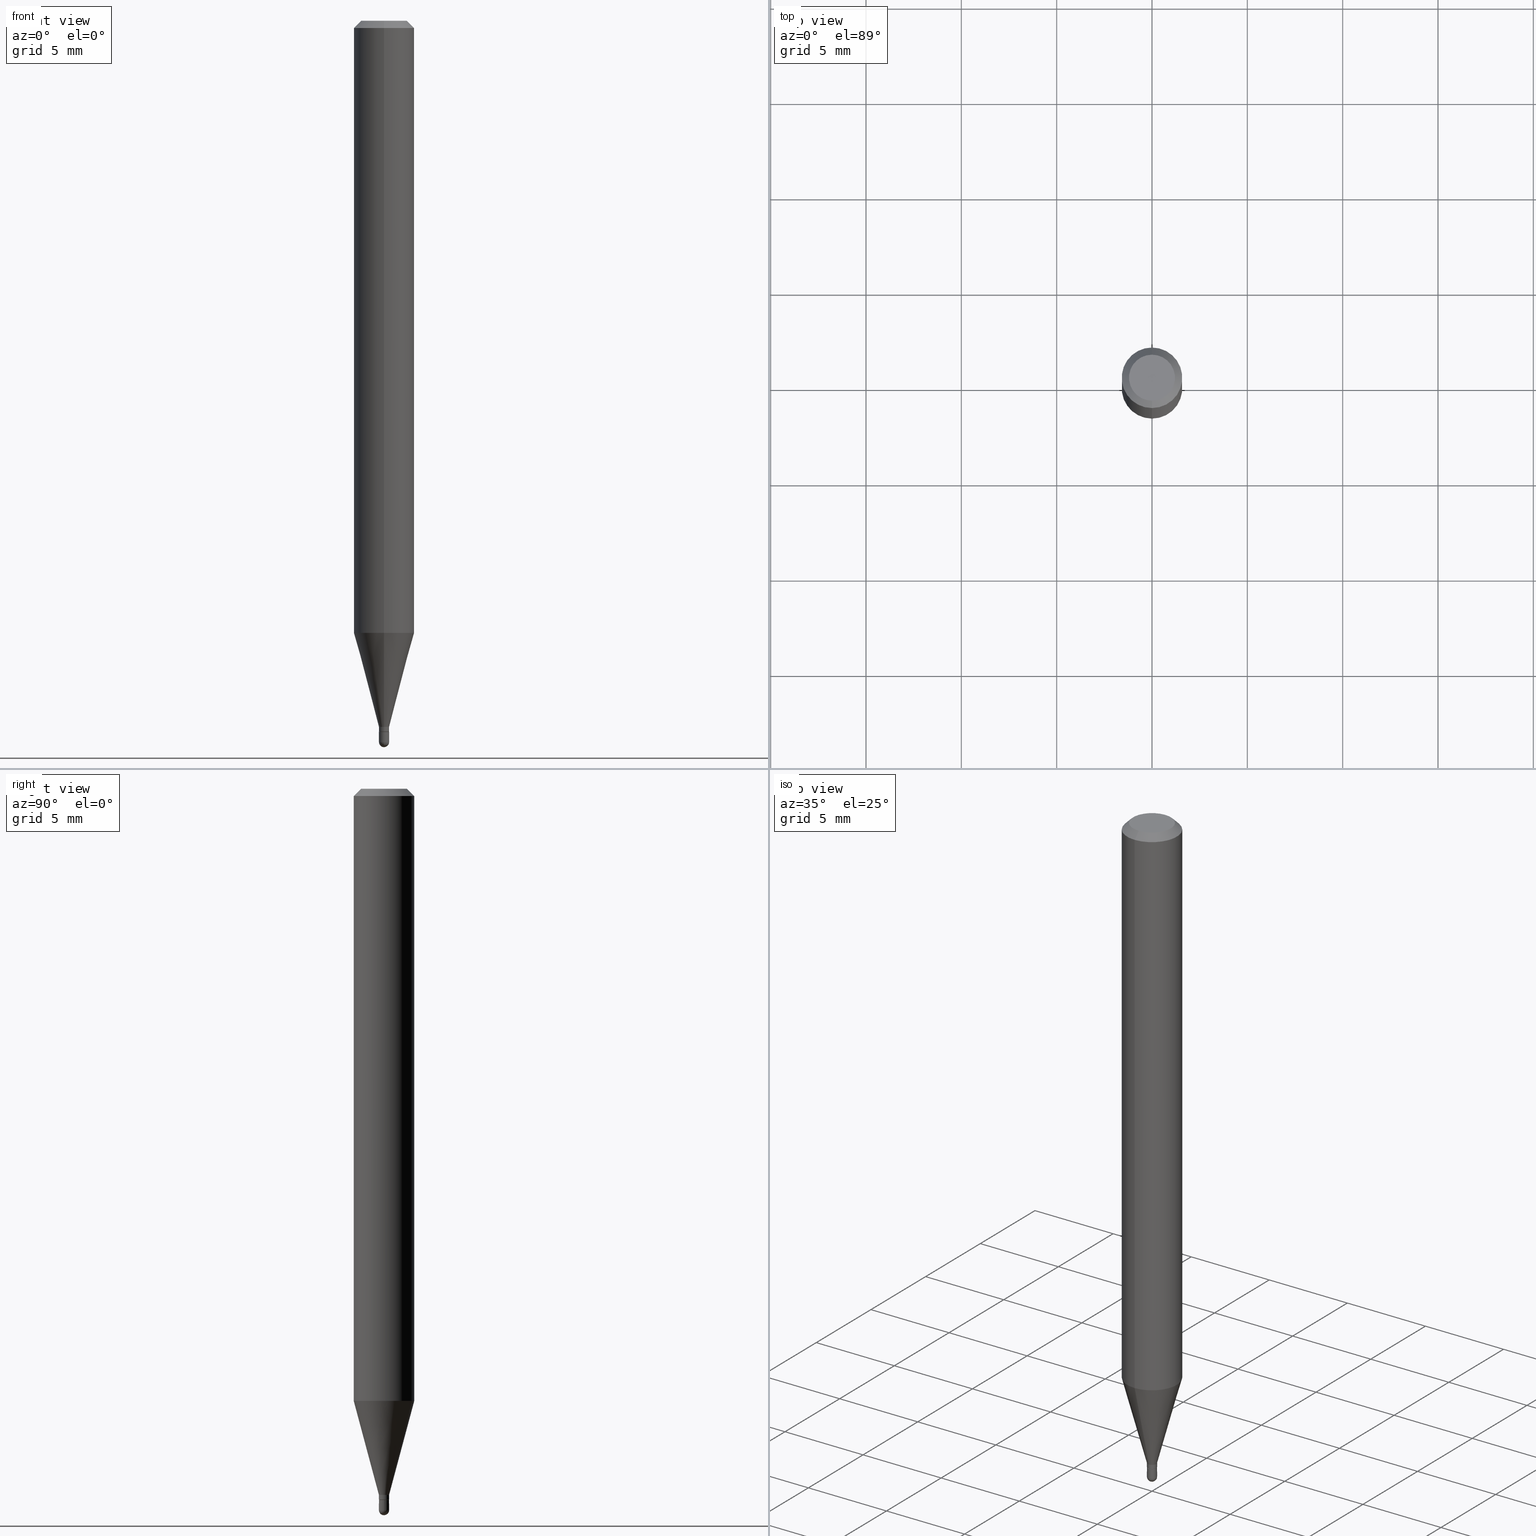
[diagram: canonical four-view strip — front | top / right | iso, engineering-drawing reading convention]
A machine part, canonical four-view strip (front | top / right | iso — engineering-drawing reading convention). The complete STEP part file that produces these views, byte-faithful:
ISO-10303-21;
HEADER;
FILE_DESCRIPTION (( 'STEP AP203' ),
    '1' );
FILE_NAME ('00685.STEP',
    '2024-03-07T18:01:37',
    ( '' ),
    ( '' ),
    'SwSTEP 2.0',
    'SolidWorks 2023',
    '' );
FILE_SCHEMA (( 'CONFIG_CONTROL_DESIGN' ));
ENDSEC;

DATA;
#1 = CARTESIAN_POINT ( 'NONE',  ( -0.01050000000000000239, 7.460698725481053648E-17, -5.164881844767652549E-31 ) ) ;
#2 = DIRECTION ( 'NONE',  ( -2.445456902332758045E-29, 3.491498385837276780E-15, 1.000000000000000000 ) ) ;
#3 = PRODUCT_DEFINITION ( 'UNKNOWN', '', #10, #252 ) ;
#4 = CIRCLE ( 'NONE', #193, 0.01049999999999992606 ) ;
#5 = AXIS2_PLACEMENT_3D ( 'NONE', #92, #249, #209 ) ;
#6 = DIRECTION ( 'NONE',  ( -2.445456902332758326E-29, 3.491498385837276386E-15, 1.000000000000000000 ) ) ;
#7 = DIRECTION ( 'NONE',  ( -2.445468806185136597E-29, 3.491481338843145583E-15, 1.000000000000000000 ) ) ;
#8 =( NAMED_UNIT ( * ) PLANE_ANGLE_UNIT ( ) SI_UNIT ( $, .RADIAN. ) );
#9 = ADVANCED_FACE ( 'NONE', ( #40 ), #241, .T. ) ;
#10 = PRODUCT_DEFINITION_FORMATION_WITH_SPECIFIED_SOURCE ( 'ANY', '', #466, .NOT_KNOWN. ) ;
#11 = CYLINDRICAL_SURFACE ( 'NONE', #12, 0.01050000000000000239 ) ;
#12 = AXIS2_PLACEMENT_3D ( 'NONE', #191, #401, #196 ) ;
#13 = AXIS2_PLACEMENT_3D ( 'NONE', #103, #70, #395 ) ;
#14 = ORIENTED_EDGE ( 'NONE', *, *, #498, .F. ) ;
#15 = CARTESIAN_POINT ( 'NONE',  ( 2.166554953746813658E-46, -3.093296437413737075E-32, -8.859509859609890847E-18 ) ) ;
#16 = EDGE_CURVE ( 'NONE', #64, #319, #258, .T. ) ;
#17 = CARTESIAN_POINT ( 'NONE',  ( 0.000000000000000000, 0.000000000000000000, 0.000000000000000000 ) ) ;
#18 = MANIFOLD_SOLID_BREP ( 'Body-Move/Copy2[1]', #269 ) ;
#19 = EDGE_LOOP ( 'NONE', ( #97, #343, #300, #341, #105 ) ) ;
#20 = APPROVAL_STATUS ( 'not_yet_approved' ) ;
#21 = DIRECTION ( 'NONE',  ( -6.982962677686266711E-15, -1.000000000000000000, 0.000000000000000000 ) ) ;
#22 = ADVANCED_FACE ( 'NONE', ( #88 ), #44, .T. ) ;
#23 = AXIS2_PLACEMENT_3D ( 'NONE', #327, #47, #277 ) ;
#24 = CARTESIAN_POINT ( 'NONE',  ( 0.01050000000000000239, -7.332110811570581229E-17, 5.119985614585733248E-31 ) ) ;
#25 = EDGE_CURVE ( 'NONE', #244, #135, #29, .T. ) ;
#26 = VERTEX_POINT ( 'NONE', #372 ) ;
#27 = CARTESIAN_POINT ( 'NONE',  ( 7.460698725484561614E-17, 0.01049999999999476699, -1.467500000000000027 ) ) ;
#28 = DIRECTION ( 'NONE',  ( -2.445456902332758326E-29, 3.491498385837276386E-15, 1.000000000000000000 ) ) ;
#29 = CIRCLE ( 'NONE', #208, 0.01050000000000000412 ) ;
#30 = VECTOR ( 'NONE', #340, 39.37007874015748143 ) ;
#31 = COORDINATED_UNIVERSAL_TIME_OFFSET ( 5, 0, .BEHIND. ) ;
#32 = ORIENTED_EDGE ( 'NONE', *, *, #90, .T. ) ;
#33 = DIRECTION ( 'NONE',  ( 6.982962677686265922E-15, 1.000000000000000000, -3.491498385837276780E-15 ) ) ;
#34 = ORIENTED_EDGE ( 'NONE', *, *, #473, .T. ) ;
#35 = FACE_OUTER_BOUND ( 'NONE', #101, .T. ) ;
#36 = DIRECTION ( 'NONE',  ( -1.000000000000000000, 7.105427357601001070E-15, -4.926315508542082329E-29 ) ) ;
#37 = AXIS2_PLACEMENT_3D ( 'NONE', #65, #345, #499 ) ;
#38 = DIRECTION ( 'NONE',  ( -6.982962677686266711E-15, -1.000000000000000000, 0.000000000000000000 ) ) ;
#39 = CARTESIAN_POINT ( 'NONE',  ( -7.332110811566961097E-17, -0.01050000000000501574, -1.458000000000000185 ) ) ;
#40 = FACE_OUTER_BOUND ( 'NONE', #302, .T. ) ;
#41 = FACE_OUTER_BOUND ( 'NONE', #506, .T. ) ;
#42 = ORIENTED_EDGE ( 'NONE', *, *, #171, .T. ) ;
#43 = APPROVAL_PERSON_ORGANIZATION ( #146, #385, #301 ) ;
#44 = CONICAL_SURFACE ( 'NONE', #23, 0.01049999999999992432, 0.2617993877991504625 ) ;
#45 = DIRECTION ( 'NONE',  ( -2.445456902332758045E-29, 3.491498385837276780E-15, 1.000000000000000000 ) ) ;
#46 = ADVANCED_FACE ( 'NONE', ( #48 ), #231, .T. ) ;
#47 = DIRECTION ( 'NONE',  ( -2.445456902332758326E-29, 3.491498385837276386E-15, 1.000000000000000000 ) ) ;
#48 = FACE_OUTER_BOUND ( 'NONE', #19, .T. ) ;
#49 = COORDINATED_UNIVERSAL_TIME_OFFSET ( 5, 0, .BEHIND. ) ;
#50 = DIRECTION ( 'NONE',  ( -2.445468806185136597E-29, 3.491481338843145583E-15, 1.000000000000000000 ) ) ;
#51 = EDGE_CURVE ( 'NONE', #319, #64, #82, .T. ) ;
#52 = CARTESIAN_POINT ( 'NONE',  ( 0.000000000000000000, 0.000000000000000000, 0.000000000000000000 ) ) ;
#53 = AXIS2_PLACEMENT_3D ( 'NONE', #56, #294, #21 ) ;
#54 = ADVANCED_FACE ( 'NONE', ( #444 ), #11, .T. ) ;
#55 = VERTEX_POINT ( 'NONE', #476 ) ;
#56 = CARTESIAN_POINT ( 'NONE',  ( 3.588708004173323073E-29, -5.123773881216203545E-15, -1.467500000000000027 ) ) ;
#57 = EDGE_CURVE ( 'NONE', #135, #319, #362, .T. ) ;
#58 = PERSON_AND_ORGANIZATION_ROLE ( 'creator' ) ;
#59 = DIRECTION ( 'NONE',  ( -6.982962677686266711E-15, -1.000000000000000000, 0.000000000000000000 ) ) ;
#60 = CYLINDRICAL_SURFACE ( 'NONE', #492, 0.06250000000000000000 ) ;
#61 = EDGE_LOOP ( 'NONE', ( #130, #387 ) ) ;
#62 = DIRECTION ( 'NONE',  ( 1.000000000000000000, -6.982962677686284065E-15, 0.000000000000000000 ) ) ;
#63 = EDGE_CURVE ( 'NONE', #497, #422, #117, .T. ) ;
#64 = VERTEX_POINT ( 'NONE', #115 ) ;
#65 = CARTESIAN_POINT ( 'NONE',  ( 3.668185353499139818E-31, -5.237247578755917907E-17, -0.01500000000000000812 ) ) ;
#66 = ORIENTED_EDGE ( 'NONE', *, *, #439, .T. ) ;
#67 = CARTESIAN_POINT ( 'NONE',  ( 4.440892098500932831E-16, 0.06249999999999556605, -1.263933358006419372 ) ) ;
#68 = AXIS2_PLACEMENT_3D ( 'NONE', #420, #386, #141 ) ;
#69 = ORIENTED_EDGE ( 'NONE', *, *, #176, .T. ) ;
#70 = DIRECTION ( 'NONE',  ( -2.445456902332758326E-29, 3.491498385837276386E-15, 1.000000000000000000 ) ) ;
#71 = ORIENTED_EDGE ( 'NONE', *, *, #152, .F. ) ;
#72 = CARTESIAN_POINT ( 'NONE',  ( 7.460698725480996948E-17, 0.01049999999999992432, -3.666073305129114000E-17 ) ) ;
#73 = EDGE_LOOP ( 'NONE', ( #377, #404, #42, #419 ) ) ;
#74 = CARTESIAN_POINT ( 'NONE',  ( 7.105427357604591324E-17, 0.009999999999994875835, -1.467999999999999972 ) ) ;
#75 = ADVANCED_FACE ( 'NONE', ( #234 ), #76, .T. ) ;
#76 = CONICAL_SURFACE ( 'NONE', #329, 0.01000000000000000194, 0.7853981633974739252 ) ;
#77 = PERSON_AND_ORGANIZATION ( #242, #149 ) ;
#78 = CALENDAR_DATE ( 2024, 7, 3 ) ;
#79 = ORIENTED_EDGE ( 'NONE', *, *, #25, .F. ) ;
#80 = DIRECTION ( 'NONE',  ( -1.807323732225331323E-15, -0.2588190451025183525, 0.9659258262890689783 ) ) ;
#81 = CARTESIAN_POINT ( 'NONE',  ( 3.642525786812761109E-29, -5.200561454206865813E-15, -1.489500000000000046 ) ) ;
#82 = CIRCLE ( 'NONE', #441, 0.01050000000000000239 ) ;
#83 =( CONVERSION_BASED_UNIT ( 'INCH', #480 ) LENGTH_UNIT ( ) NAMED_UNIT ( #324 ) );
#84 = AXIS2_PLACEMENT_3D ( 'NONE', #254, #245, #131 ) ;
#85 = AXIS2_PLACEMENT_3D ( 'NONE', #188, #360, #158 ) ;
#86 = EDGE_LOOP ( 'NONE', ( #257, #137 ) ) ;
#87 = CC_DESIGN_PERSON_AND_ORGANIZATION_ASSIGNMENT ( #163, #58, ( #3 ) ) ;
#88 = FACE_OUTER_BOUND ( 'NONE', #110, .T. ) ;
#89 = DIRECTION ( 'NONE',  ( -2.445456902332758045E-29, 3.491498385837276780E-15, 1.000000000000000000 ) ) ;
#90 = EDGE_CURVE ( 'NONE', #388, #222, #391, .T. ) ;
#91 = CC_DESIGN_SECURITY_CLASSIFICATION ( #184, ( #10 ) ) ;
#92 = CARTESIAN_POINT ( 'NONE',  ( 3.668185353499139818E-31, -5.237247578755917907E-17, -0.01500000000000000812 ) ) ;
#93 = ORIENTED_EDGE ( 'NONE', *, *, #232, .T. ) ;
#94 = LINE ( 'NONE', #24, #30 ) ;
#95 = ORIENTED_EDGE ( 'NONE', *, *, #90, .F. ) ;
#96 = CARTESIAN_POINT ( 'NONE',  ( 3.840629472727447874E-16, 0.04749999999999999362, -1.747056831868805136E-16 ) ) ;
#97 = ORIENTED_EDGE ( 'NONE', *, *, #25, .T. ) ;
#98 = DIRECTION ( 'NONE',  ( -6.982962677686265922E-15, -1.000000000000000000, 3.483106191921935554E-15 ) ) ;
#99 = ORIENTED_EDGE ( 'NONE', *, *, #417, .F. ) ;
#100 = DIRECTION ( 'NONE',  ( -2.445456902332758045E-29, 3.491498385837276780E-15, 1.000000000000000000 ) ) ;
#101 = EDGE_LOOP ( 'NONE', ( #456, #118, #161, #79 ) ) ;
#102 = SHAPE_DEFINITION_REPRESENTATION ( #436, #368 ) ;
#103 = CARTESIAN_POINT ( 'NONE',  ( 3.589930732624489770E-29, -5.125519630409121979E-15, -1.467999999999999972 ) ) ;
#104 = ADVANCED_FACE ( 'NONE', ( #170 ), #455, .F. ) ;
#105 = ORIENTED_EDGE ( 'NONE', *, *, #498, .T. ) ;
#106 = CARTESIAN_POINT ( 'NONE',  ( 3.641627862209123003E-29, -5.201847333345970488E-15, -1.489500000000000046 ) ) ;
#107 = APPROVAL ( #398, 'UNSPECIFIED' ) ;
#108 = CIRCLE ( 'NONE', #5, 0.06250000000000000000 ) ;
#109 = CONICAL_SURFACE ( 'NONE', #240, 0.01000000000000000194, 0.7853981633974739252 ) ;
#110 = EDGE_LOOP ( 'NONE', ( #311, #172, #346, #192 ) ) ;
#111 = LINE ( 'NONE', #74, #178 ) ;
#112 = ORIENTED_EDGE ( 'NONE', *, *, #113, .F. ) ;
#113 = EDGE_CURVE ( 'NONE', #222, #388, #4, .T. ) ;
#114 = LINE ( 'NONE', #39, #194 ) ;
#115 = CARTESIAN_POINT ( 'NONE',  ( 0.01050000000000000239, -5.198815713537444309E-15, -1.467999999999999972 ) ) ;
#116 = LINE ( 'NONE', #472, #406 ) ;
#117 = LINE ( 'NONE', #367, #373 ) ;
#118 = ORIENTED_EDGE ( 'NONE', *, *, #389, .T. ) ;
#119 = CARTESIAN_POINT ( 'NONE',  ( -3.773273898774340269E-16, -0.04749999999999999362, 1.569866634676607381E-16 ) ) ;
#120 = VECTOR ( 'NONE', #461, 39.37007874015748854 ) ;
#121 = CARTESIAN_POINT ( 'NONE',  ( 3.589948207479780735E-29, -5.125494605421738004E-15, -1.467999999999999972 ) ) ;
#122 = COORDINATED_UNIVERSAL_TIME_OFFSET ( 5, 0, .BEHIND. ) ;
#123 = FACE_OUTER_BOUND ( 'NONE', #272, .T. ) ;
#124 = ORIENTED_EDGE ( 'NONE', *, *, #16, .T. ) ;
#125 = DIRECTION ( 'NONE',  ( -2.445456902332758326E-29, 3.491498385837276386E-15, 1.000000000000000000 ) ) ;
#126 = VERTEX_POINT ( 'NONE', #166 ) ;
#127 = DIRECTION ( 'NONE',  ( -2.445456902332758326E-29, 3.491498385837276386E-15, 1.000000000000000000 ) ) ;
#128 = AXIS2_PLACEMENT_3D ( 'NONE', #155, #197, #233 ) ;
#129 = ADVANCED_FACE ( 'NONE', ( #299 ), #296, .T. ) ;
#130 = ORIENTED_EDGE ( 'NONE', *, *, #292, .T. ) ;
#131 = DIRECTION ( 'NONE',  ( 6.982962677686265133E-15, 1.000000000000000000, 0.000000000000000000 ) ) ;
#132 = ORIENTED_EDGE ( 'NONE', *, *, #113, .T. ) ;
#133 = EDGE_CURVE ( 'NONE', #422, #126, #248, .T. ) ;
#134 = CARTESIAN_POINT ( 'NONE',  ( 3.642525786812761109E-29, -5.200561454206865813E-15, -1.489500000000000046 ) ) ;
#135 = VERTEX_POINT ( 'NONE', #451 ) ;
#136 = EDGE_CURVE ( 'NONE', #383, #169, #278, .T. ) ;
#137 = ORIENTED_EDGE ( 'NONE', *, *, #297, .F. ) ;
#138 = EDGE_CURVE ( 'NONE', #351, #64, #94, .T. ) ;
#139 = FACE_OUTER_BOUND ( 'NONE', #283, .T. ) ;
#140 = CIRCLE ( 'NONE', #320, 0.04749999999999999362 ) ;
#141 = DIRECTION ( 'NONE',  ( 6.982962677686265922E-15, 1.000000000000000000, 0.000000000000000000 ) ) ;
#142 = EDGE_CURVE ( 'NONE', #169, #383, #348, .T. ) ;
#143 = ORIENTED_EDGE ( 'NONE', *, *, #331, .F. ) ;
#144 = EDGE_LOOP ( 'NONE', ( #124, #156 ) ) ;
#145 = DIRECTION ( 'NONE',  ( -6.982962677686266711E-15, -1.000000000000000000, 0.000000000000000000 ) ) ;
#146 = PERSON_AND_ORGANIZATION ( #242, #149 ) ;
#147 = DIRECTION ( 'NONE',  ( -6.982962677686266711E-15, -1.000000000000000000, 0.000000000000000000 ) ) ;
#148 = CIRCLE ( 'NONE', #13, 0.01000000000000000194 ) ;
#149 = ORGANIZATION ( 'UNSPECIFIED', 'UNSPECIFIED', '' ) ;
#150 = ORIENTED_EDGE ( 'NONE', *, *, #477, .F. ) ;
#151 = PLANE ( 'NONE',  #410 ) ;
#152 = EDGE_CURVE ( 'NONE', #497, #174, #140, .T. ) ;
#153 = CARTESIAN_POINT ( 'NONE',  ( 4.440892098500625669E-16, 0.06250000000000000000, -2.182186491148297741E-16 ) ) ;
#154 = CONICAL_SURFACE ( 'NONE', #337, 0.06250000000000000000, 0.7853981633974483900 ) ;
#155 = CARTESIAN_POINT ( 'NONE',  ( 3.642525786812761109E-29, -5.200561454206865813E-15, -1.489500000000000046 ) ) ;
#156 = ORIENTED_EDGE ( 'NONE', *, *, #51, .T. ) ;
#157 = CARTESIAN_POINT ( 'NONE',  ( 3.641627862209123003E-29, -5.201847333345970488E-15, -1.489500000000000046 ) ) ;
#158 = DIRECTION ( 'NONE',  ( 1.000000000000000000, -6.982962677686284065E-15, 0.000000000000000000 ) ) ;
#159 = VECTOR ( 'NONE', #89, 39.37007874015748143 ) ;
#160 = DIRECTION ( 'NONE',  ( 6.982962677686265922E-15, 1.000000000000000000, 0.000000000000000000 ) ) ;
#161 = ORIENTED_EDGE ( 'NONE', *, *, #200, .F. ) ;
#162 = CARTESIAN_POINT ( 'NONE',  ( 3.090894554425418435E-29, -4.413021279285300535E-15, -1.263933358006419150 ) ) ;
#163 = PERSON_AND_ORGANIZATION ( #242, #149 ) ;
#164 = DIRECTION ( 'NONE',  ( -2.445468806185136597E-29, 3.491481338843145583E-15, 1.000000000000000000 ) ) ;
#165 = APPROVAL_ROLE ( '' ) ;
#166 = CARTESIAN_POINT ( 'NONE',  ( 4.440892098500936776E-16, 0.06249999999999993755, -0.01500000000000022669 ) ) ;
#167 = AXIS2_PLACEMENT_3D ( 'NONE', #214, #508, #308 ) ;
#168 =( GEOMETRIC_REPRESENTATION_CONTEXT ( 3 ) GLOBAL_UNCERTAINTY_ASSIGNED_CONTEXT ( ( #243 ) ) GLOBAL_UNIT_ASSIGNED_CONTEXT ( ( #83, #8, #190 ) ) REPRESENTATION_CONTEXT ( 'NONE', 'WORKASPACE' ) );
#169 = VERTEX_POINT ( 'NONE', #342 ) ;
#170 = FACE_OUTER_BOUND ( 'NONE', #144, .T. ) ;
#171 = EDGE_CURVE ( 'NONE', #169, #422, #203, .T. ) ;
#172 = ORIENTED_EDGE ( 'NONE', *, *, #261, .T. ) ;
#173 = ADVANCED_FACE ( 'NONE', ( #123 ), #60, .T. ) ;
#174 = VERTEX_POINT ( 'NONE', #96 ) ;
#175 = CARTESIAN_POINT ( 'NONE',  ( -0.01050000000000000239, -5.088421042559490534E-15, -1.467999999999999972 ) ) ;
#176 = EDGE_CURVE ( 'NONE', #264, #244, #229, .T. ) ;
#177 = CARTESIAN_POINT ( 'NONE',  ( 3.565476163601162560E-29, -5.090604646550748565E-15, -1.458000000000000185 ) ) ;
#178 = VECTOR ( 'NONE', #180, 39.37007874015748143 ) ;
#179 = ORIENTED_EDGE ( 'NONE', *, *, #470, .T. ) ;
#180 = DIRECTION ( 'NONE',  ( 5.024295867788190974E-15, 0.7071067811865681119, 0.7071067811865270336 ) ) ;
#181 = MANIFOLD_SOLID_BREP ( 'Body-Move/Copy2[2]', #485 ) ;
#182 = ORIENTED_EDGE ( 'NONE', *, *, #292, .F. ) ;
#183 = FACE_OUTER_BOUND ( 'NONE', #274, .T. ) ;
#184 = SECURITY_CLASSIFICATION ( '', '', #446 ) ;
#185 = CARTESIAN_POINT ( 'NONE',  ( 3.316907271900976096E-16, 0.04749999999999999362, -1.702759282570755759E-16 ) ) ;
#186 = EDGE_CURVE ( 'NONE', #126, #422, #108, .T. ) ;
#187 = AXIS2_PLACEMENT_3D ( 'NONE', #106, #36, #223 ) ;
#188 = CARTESIAN_POINT ( 'NONE',  ( 3.642525786812761109E-29, -5.200561454206865813E-15, -1.489500000000000046 ) ) ;
#189 = PERSON_AND_ORGANIZATION ( #242, #149 ) ;
#190 =( NAMED_UNIT ( * ) SI_UNIT ( $, .STERADIAN. ) SOLID_ANGLE_UNIT ( ) );
#191 = CARTESIAN_POINT ( 'NONE',  ( 0.000000000000000000, 0.000000000000000000, 0.000000000000000000 ) ) ;
#192 = ORIENTED_EDGE ( 'NONE', *, *, #136, .F. ) ;
#193 = AXIS2_PLACEMENT_3D ( 'NONE', #378, #127, #59 ) ;
#194 = VECTOR ( 'NONE', #80, 39.37007874015748854 ) ;
#195 = LINE ( 'NONE', #153, #339 ) ;
#196 = DIRECTION ( 'NONE',  ( 1.000000000000000000, -6.982962677686265922E-15, 4.876176775795935232E-29 ) ) ;
#197 = DIRECTION ( 'NONE',  ( -2.445468806185136597E-29, 3.491481338843145583E-15, 1.000000000000000000 ) ) ;
#198 = DIRECTION ( 'NONE',  ( -2.445468806185136597E-29, 3.491481338843145583E-15, 1.000000000000000000 ) ) ;
#199 = ADVANCED_FACE ( 'NONE', ( #376 ), #416, .T. ) ;
#200 = EDGE_CURVE ( 'NONE', #135, #26, #270, .T. ) ;
#201 = AXIS2_PLACEMENT_3D ( 'NONE', #332, #445, #98 ) ;
#202 = DIRECTION ( 'NONE',  ( -2.445456902332758326E-29, 3.491498385837276386E-15, 1.000000000000000000 ) ) ;
#203 = LINE ( 'NONE', #259, #159 ) ;
#204 = ORIENTED_EDGE ( 'NONE', *, *, #51, .F. ) ;
#205 = CARTESIAN_POINT ( 'NONE',  ( 0.000000000000000000, 0.000000000000000000, 0.000000000000000000 ) ) ;
#206 = EDGE_LOOP ( 'NONE', ( #226, #93, #438, #424 ) ) ;
#207 = CALENDAR_DATE ( 2024, 7, 3 ) ;
#208 = AXIS2_PLACEMENT_3D ( 'NONE', #81, #484, #482 ) ;
#209 = DIRECTION ( 'NONE',  ( -6.982962677686265922E-15, -1.000000000000000000, 3.483106191921935554E-15 ) ) ;
#210 = VECTOR ( 'NONE', #100, 39.37007874015748143 ) ;
#211 = ORIENTED_EDGE ( 'NONE', *, *, #63, .F. ) ;
#212 = CARTESIAN_POINT ( 'NONE',  ( 3.668185353499139818E-31, -5.237247578755917907E-17, -0.01500000000000000812 ) ) ;
#213 = DATE_TIME_ROLE ( 'classification_date' ) ;
#214 = CARTESIAN_POINT ( 'NONE',  ( 3.565476163601162560E-29, -5.090604646550748565E-15, -1.458000000000000185 ) ) ;
#215 = ORIENTED_EDGE ( 'NONE', *, *, #142, .T. ) ;
#216 = CARTESIAN_POINT ( 'NONE',  ( -6.982962677682677640E-17, -0.01000000000000512805, -1.467999999999999972 ) ) ;
#217 = CIRCLE ( 'NONE', #167, 0.01049999999999992432 ) ;
#218 = CONICAL_SURFACE ( 'NONE', #37, 0.06250000000000000000, 0.7853981633974483900 ) ;
#219 = ORIENTED_EDGE ( 'NONE', *, *, #359, .F. ) ;
#220 = ADVANCED_FACE ( 'NONE', ( #382 ), #154, .T. ) ;
#221 = PLANE ( 'NONE',  #486 ) ;
#222 = VERTEX_POINT ( 'NONE', #27 ) ;
#223 = DIRECTION ( 'NONE',  ( -7.105427357601001070E-15, -1.000000000000000000, 0.000000000000000000 ) ) ;
#224 = ADVANCED_FACE ( 'NONE', ( #330 ), #457, .T. ) ;
#225 = DATE_AND_TIME ( #350, #255 ) ;
#226 = ORIENTED_EDGE ( 'NONE', *, *, #325, .T. ) ;
#227 = CARTESIAN_POINT ( 'NONE',  ( 0.000000000000000000, 0.000000000000000000, 0.000000000000000000 ) ) ;
#228 = AXIS2_PLACEMENT_3D ( 'NONE', #399, #198, #370 ) ;
#229 = CIRCLE ( 'NONE', #84, 0.01050000000000003535 ) ;
#230 = APPLICATION_PROTOCOL_DEFINITION ( 'international standard', 'config_control_design', 1994, #481 ) ;
#231 = CYLINDRICAL_SURFACE ( 'NONE', #228, 0.01050000000000000239 ) ;
#232 = EDGE_CURVE ( 'NONE', #504, #383, #467, .T. ) ;
#233 = DIRECTION ( 'NONE',  ( 1.000000000000000000, -6.982962677686284065E-15, 0.000000000000000000 ) ) ;
#234 = FACE_OUTER_BOUND ( 'NONE', #460, .T. ) ;
#235 = CC_DESIGN_PERSON_AND_ORGANIZATION_ASSIGNMENT ( #314, #316, ( #10 ) ) ;
#236 = CARTESIAN_POINT ( 'NONE',  ( 2.593480985524697824E-16, 0.01049999999999483465, -1.458000000000000185 ) ) ;
#237 = DIRECTION ( 'NONE',  ( -2.445456902332758326E-29, 3.491498385837276386E-15, 1.000000000000000000 ) ) ;
#238 = AXIS2_PLACEMENT_3D ( 'NONE', #323, #7, #408 ) ;
#239 = CIRCLE ( 'NONE', #405, 0.04749999999999999362 ) ;
#240 = AXIS2_PLACEMENT_3D ( 'NONE', #407, #6, #38 ) ;
#241 = SPHERICAL_SURFACE ( 'NONE', #434, 0.01050000000000003535 ) ;
#242 = PERSON ( 'UNSPECIFIED', 'UNSPECIFIED', 'UNSPECIFIED', ('UNSPECIFIED'), ('UNSPECIFIED'), ('UNSPECIFIED') ) ;
#243 = UNCERTAINTY_MEASURE_WITH_UNIT (LENGTH_MEASURE( 1.000000000000000082E-05 ), #83, 'distance_accuracy_value', 'NONE');
#244 = VERTEX_POINT ( 'NONE', #392 ) ;
#245 = DIRECTION ( 'NONE',  ( 1.000000000000000000, -6.982962677686265922E-15, 4.883557194083112340E-29 ) ) ;
#246 = ORIENTED_EDGE ( 'NONE', *, *, #133, .T. ) ;
#247 = DATE_AND_TIME ( #290, #402 ) ;
#248 = CIRCLE ( 'NONE', #201, 0.06250000000000000000 ) ;
#249 = DIRECTION ( 'NONE',  ( -2.445456902332758326E-29, 3.491498385837276386E-15, 1.000000000000000000 ) ) ;
#250 = VERTEX_POINT ( 'NONE', #357 ) ;
#251 = DIRECTION ( 'NONE',  ( 2.445456902332758326E-29, -3.491498385837276386E-15, -1.000000000000000000 ) ) ;
#252 = DESIGN_CONTEXT ( 'detailed design', #481, 'design' ) ;
#253 = ORIENTED_EDGE ( 'NONE', *, *, #63, .T. ) ;
#254 = CARTESIAN_POINT ( 'NONE',  ( 3.641627862209123003E-29, -5.201847333345970488E-15, -1.489500000000000046 ) ) ;
#255 = LOCAL_TIME ( 13, 1, 37.00000000000000000, #468 ) ;
#256 = ORIENTED_EDGE ( 'NONE', *, *, #325, .F. ) ;
#257 = ORIENTED_EDGE ( 'NONE', *, *, #512, .F. ) ;
#258 = CIRCLE ( 'NONE', #238, 0.01050000000000000239 ) ;
#259 = CARTESIAN_POINT ( 'NONE',  ( -4.364351673553916201E-16, -0.06250000000000000000, 2.182186491148297741E-16 ) ) ;
#260 = AXIS2_PLACEMENT_3D ( 'NONE', #17, #489, #289 ) ;
#261 = EDGE_CURVE ( 'NONE', #504, #250, #217, .T. ) ;
#262 = ORIENTED_EDGE ( 'NONE', *, *, #331, .T. ) ;
#263 = FACE_OUTER_BOUND ( 'NONE', #86, .T. ) ;
#264 = VERTEX_POINT ( 'NONE', #459 ) ;
#265 = CARTESIAN_POINT ( 'NONE',  ( 7.283063041544588178E-17, 0.009999999999994875835, -1.467999999999999972 ) ) ;
#266 = ADVANCED_FACE ( 'NONE', ( #139 ), #218, .T. ) ;
#267 = DATE_AND_TIME ( #430, #334 ) ;
#268 = LINE ( 'NONE', #216, #364 ) ;
#269 = CLOSED_SHELL ( 'NONE', ( #46, #336, #104, #9, #54 ) ) ;
#270 = CIRCLE ( 'NONE', #396, 0.01050000000000000412 ) ;
#271 = AXIS2_PLACEMENT_3D ( 'NONE', #403, #282, #317 ) ;
#272 = EDGE_LOOP ( 'NONE', ( #215, #179, #349, #449 ) ) ;
#273 = CARTESIAN_POINT ( 'NONE',  ( 3.565476163601162560E-29, -5.090604646550748565E-15, -1.458000000000000185 ) ) ;
#274 = EDGE_LOOP ( 'NONE', ( #143, #132, #66, #415 ) ) ;
#275 = CC_DESIGN_PERSON_AND_ORGANIZATION_ASSIGNMENT ( #77, #363, ( #466 ) ) ;
#276 = SPHERICAL_SURFACE ( 'NONE', #68, 0.01050000000000003535 ) ;
#277 = DIRECTION ( 'NONE',  ( -6.982962677686266711E-15, -1.000000000000000000, 0.000000000000000000 ) ) ;
#278 = CIRCLE ( 'NONE', #358, 0.06250000000000000000 ) ;
#279 = COORDINATED_UNIVERSAL_TIME_OFFSET ( 5, 0, .BEHIND. ) ;
#280 = CARTESIAN_POINT ( 'NONE',  ( 3.589930732624489770E-29, -5.125519630409121979E-15, -1.467999999999999972 ) ) ;
#281 = DIRECTION ( 'NONE',  ( -4.851104656540964275E-15, -0.7071067811865500152, -0.7071067811865450192 ) ) ;
#282 = DIRECTION ( 'NONE',  ( -2.445456902332758326E-29, 3.491498385837276386E-15, 1.000000000000000000 ) ) ;
#283 = EDGE_LOOP ( 'NONE', ( #71, #253, #246, #150 ) ) ;
#284 = VECTOR ( 'NONE', #479, 39.37007874015748143 ) ;
#285 = CIRCLE ( 'NONE', #187, 0.01050000000000003535 ) ;
#286 = CC_DESIGN_APPROVAL ( #107, ( #3 ) ) ;
#287 = ADVANCED_FACE ( 'NONE', ( #263 ), #151, .F. ) ;
#288 = DIRECTION ( 'NONE',  ( 1.000000000000000000, -6.982962677686284854E-15, 0.000000000000000000 ) ) ;
#289 = DIRECTION ( 'NONE',  ( -6.982962677686265922E-15, -1.000000000000000000, 3.491498385837276386E-15 ) ) ;
#290 = CALENDAR_DATE ( 2024, 7, 3 ) ;
#291 = DIRECTION ( 'NONE',  ( -1.000000000000000000, 6.982962677686265922E-15, -4.876176775795935793E-29 ) ) ;
#292 = EDGE_CURVE ( 'NONE', #174, #497, #239, .T. ) ;
#293 = CIRCLE ( 'NONE', #85, 0.01050000000000000412 ) ;
#294 = DIRECTION ( 'NONE',  ( -2.445456902332758326E-29, 3.491498385837276386E-15, 1.000000000000000000 ) ) ;
#295 = PERSON_AND_ORGANIZATION_ROLE ( 'design_supplier' ) ;
#296 = CYLINDRICAL_SURFACE ( 'NONE', #448, 0.01049999999999992432 ) ;
#297 = EDGE_CURVE ( 'NONE', #344, #55, #148, .T. ) ;
#298 = DATE_TIME_ROLE ( 'creation_date' ) ;
#299 = FACE_OUTER_BOUND ( 'NONE', #418, .T. ) ;
#300 = ORIENTED_EDGE ( 'NONE', *, *, #16, .F. ) ;
#301 = APPROVAL_ROLE ( '' ) ;
#302 = EDGE_LOOP ( 'NONE', ( #502, #69, #14, #469 ) ) ;
#303 = DIRECTION ( 'NONE',  ( -2.445456902332757765E-29, 3.491498385837276780E-15, 1.000000000000000000 ) ) ;
#304 = AXIS2_PLACEMENT_3D ( 'NONE', #412, #494, #291 ) ;
#305 = EDGE_LOOP ( 'NONE', ( #211, #182, #428, #394 ) ) ;
#306 = PERSON_AND_ORGANIZATION_ROLE ( 'classification_officer' ) ;
#307 = ORIENTED_EDGE ( 'NONE', *, *, #200, .T. ) ;
#308 = DIRECTION ( 'NONE',  ( -6.982962677686266711E-15, -1.000000000000000000, 0.000000000000000000 ) ) ;
#309 = ORIENTED_EDGE ( 'NONE', *, *, #138, .T. ) ;
#310 = DIRECTION ( 'NONE',  ( -2.445456902332758326E-29, 3.491498385837276386E-15, 1.000000000000000000 ) ) ;
#311 = ORIENTED_EDGE ( 'NONE', *, *, #232, .F. ) ;
#312 = CARTESIAN_POINT ( 'NONE',  ( 7.460698725484561614E-17, 0.01049999999999483465, -1.458000000000000185 ) ) ;
#313 = ORIENTED_EDGE ( 'NONE', *, *, #359, .T. ) ;
#314 = PERSON_AND_ORGANIZATION ( #242, #149 ) ;
#315 = DIRECTION ( 'NONE',  ( -6.982962677686265922E-15, -1.000000000000000000, 3.491498385837276780E-15 ) ) ;
#316 = PERSON_AND_ORGANIZATION_ROLE ( 'creator' ) ;
#317 = DIRECTION ( 'NONE',  ( -6.982962677686266711E-15, -1.000000000000000000, 0.000000000000000000 ) ) ;
#318 = MECHANICAL_CONTEXT ( 'NONE', #333, 'mechanical' ) ;
#319 = VERTEX_POINT ( 'NONE', #175 ) ;
#320 = AXIS2_PLACEMENT_3D ( 'NONE', #15, #491, #413 ) ;
#321 = CARTESIAN_POINT ( 'NONE',  ( 0.000000000000000000, 0.000000000000000000, 0.000000000000000000 ) ) ;
#322 = DIRECTION ( 'NONE',  ( -1.000000000000000000, 6.982962677686265922E-15, -4.883557194083113462E-29 ) ) ;
#323 = CARTESIAN_POINT ( 'NONE',  ( 3.589948207479780735E-29, -5.125494605421738004E-15, -1.467999999999999972 ) ) ;
#324 = DIMENSIONAL_EXPONENTS ( 1.000000000000000000, 0.000000000000000000, 0.000000000000000000, 0.000000000000000000, 0.000000000000000000, 0.000000000000000000, 0.000000000000000000 ) ;
#325 = EDGE_CURVE ( 'NONE', #250, #504, #435, .T. ) ;
#326 = CARTESIAN_POINT ( 'NONE',  ( 4.364351673553919652E-16, 0.06249999999999995143, -0.01500000000000022669 ) ) ;
#327 = CARTESIAN_POINT ( 'NONE',  ( 3.565476163601162560E-29, -5.090604646550748565E-15, -1.458000000000000185 ) ) ;
#328 = CC_DESIGN_DATE_AND_TIME_ASSIGNMENT ( #267, #213, ( #184 ) ) ;
#329 = AXIS2_PLACEMENT_3D ( 'NONE', #280, #237, #495 ) ;
#330 = FACE_OUTER_BOUND ( 'NONE', #206, .T. ) ;
#331 = EDGE_CURVE ( 'NONE', #222, #504, #464, .T. ) ;
#332 = CARTESIAN_POINT ( 'NONE',  ( 3.668185353499139818E-31, -5.237247578755917907E-17, -0.01500000000000000812 ) ) ;
#333 = APPLICATION_CONTEXT ( 'configuration controlled 3d designs of mechanical parts and assemblies' ) ;
#334 = LOCAL_TIME ( 13, 1, 37.00000000000000000, #31 ) ;
#335 = DIRECTION ( 'NONE',  ( -2.445456902332758326E-29, 3.491498385837276386E-15, 1.000000000000000000 ) ) ;
#336 = ADVANCED_FACE ( 'NONE', ( #35 ), #276, .T. ) ;
#337 = AXIS2_PLACEMENT_3D ( 'NONE', #212, #251, #384 ) ;
#338 = APPROVAL_DATE_TIME ( #247, #355 ) ;
#339 = VECTOR ( 'NONE', #2, 39.37007874015748143 ) ;
#340 = DIRECTION ( 'NONE',  ( -2.445468806185136877E-29, 3.491481338843145188E-15, 1.000000000000000000 ) ) ;
#341 = ORIENTED_EDGE ( 'NONE', *, *, #138, .F. ) ;
#342 = CARTESIAN_POINT ( 'NONE',  ( -4.364351673553607559E-16, -0.06250000000000441314, -1.263933358006418706 ) ) ;
#343 = ORIENTED_EDGE ( 'NONE', *, *, #57, .T. ) ;
#344 = VERTEX_POINT ( 'NONE', #265 ) ;
#345 = DIRECTION ( 'NONE',  ( 2.445456902332758326E-29, -3.491498385837276386E-15, -1.000000000000000000 ) ) ;
#346 = ORIENTED_EDGE ( 'NONE', *, *, #440, .T. ) ;
#347 = DIRECTION ( 'NONE',  ( -2.445456902332758326E-29, 3.491498385837276386E-15, 1.000000000000000000 ) ) ;
#348 = CIRCLE ( 'NONE', #374, 0.06250000000000000000 ) ;
#349 = ORIENTED_EDGE ( 'NONE', *, *, #133, .F. ) ;
#350 = CALENDAR_DATE ( 2024, 7, 3 ) ;
#351 = VERTEX_POINT ( 'NONE', #432 ) ;
#352 = CARTESIAN_POINT ( 'NONE',  ( -7.332110811566964795E-17, -0.01050000000000508686, -1.467500000000000027 ) ) ;
#353 = ORIENTED_EDGE ( 'NONE', *, *, #57, .F. ) ;
#354 = DIRECTION ( 'NONE',  ( 2.445456902332757765E-29, -3.491498385837276780E-15, -1.000000000000000000 ) ) ;
#355 = APPROVAL ( #20, 'UNSPECIFIED' ) ;
#356 = CC_DESIGN_APPROVAL ( #355, ( #10 ) ) ;
#357 = CARTESIAN_POINT ( 'NONE',  ( -7.332110811566961097E-17, -0.01050000000000501574, -1.458000000000000185 ) ) ;
#358 = AXIS2_PLACEMENT_3D ( 'NONE', #453, #202, #411 ) ;
#359 = EDGE_CURVE ( 'NONE', #344, #222, #111, .T. ) ;
#360 = DIRECTION ( 'NONE',  ( -2.445468806185136597E-29, 3.491481338843145583E-15, 1.000000000000000000 ) ) ;
#361 = APPROVAL_ROLE ( '' ) ;
#362 = LINE ( 'NONE', #1, #284 ) ;
#363 = PERSON_AND_ORGANIZATION_ROLE ( 'design_owner' ) ;
#364 = VECTOR ( 'NONE', #390, 39.37007874015748143 ) ;
#365 = CIRCLE ( 'NONE', #128, 0.01050000000000000412 ) ;
#366 = LINE ( 'NONE', #326, #493 ) ;
#367 = CARTESIAN_POINT ( 'NONE',  ( -4.287811248607203282E-16, -0.06250000000000005551, -0.01499999999999979128 ) ) ;
#368 = ADVANCED_BREP_SHAPE_REPRESENTATION ( '00685', ( #18, #181, #381 ), #168 ) ;
#369 = DIRECTION ( 'NONE',  ( 0.000000000000000000, 0.000000000000000000, 1.000000000000000000 ) ) ;
#370 = DIRECTION ( 'NONE',  ( 1.000000000000000000, -6.982962677686265922E-15, 4.876176775795935232E-29 ) ) ;
#371 = ADVANCED_FACE ( 'NONE', ( #183 ), #429, .T. ) ;
#372 = CARTESIAN_POINT ( 'NONE',  ( -7.460698725477422422E-17, -0.01050000000000522217, -1.489500000000000046 ) ) ;
#373 = VECTOR ( 'NONE', #281, 39.37007874015748143 ) ;
#374 = AXIS2_PLACEMENT_3D ( 'NONE', #162, #490, #409 ) ;
#375 = DIRECTION ( 'NONE',  ( -6.982962677686266711E-15, -1.000000000000000000, 3.491498385837276780E-15 ) ) ;
#376 = FACE_OUTER_BOUND ( 'NONE', #73, .T. ) ;
#377 = ORIENTED_EDGE ( 'NONE', *, *, #470, .F. ) ;
#378 = CARTESIAN_POINT ( 'NONE',  ( 3.588708004173323073E-29, -5.123773881216203545E-15, -1.467500000000000027 ) ) ;
#379 = ORIENTED_EDGE ( 'NONE', *, *, #297, .T. ) ;
#380 = AXIS2_PLACEMENT_3D ( 'NONE', #177, #347, #147 ) ;
#381 = AXIS2_PLACEMENT_3D ( 'NONE', #321, #369, #443 ) ;
#382 = FACE_OUTER_BOUND ( 'NONE', #305, .T. ) ;
#383 = VERTEX_POINT ( 'NONE', #67 ) ;
#384 = DIRECTION ( 'NONE',  ( 6.982962677686265922E-15, 1.000000000000000000, -3.483106191921935554E-15 ) ) ;
#385 = APPROVAL ( #496, 'UNSPECIFIED' ) ;
#386 = DIRECTION ( 'NONE',  ( -1.000000000000000000, 6.982962677686265922E-15, -4.883557194083113462E-29 ) ) ;
#387 = ORIENTED_EDGE ( 'NONE', *, *, #152, .T. ) ;
#388 = VERTEX_POINT ( 'NONE', #352 ) ;
#389 = EDGE_CURVE ( 'NONE', #264, #26, #285, .T. ) ;
#390 = DIRECTION ( 'NONE',  ( -4.937700262164674260E-15, -0.7071067811865632269, 0.7071067811865319186 ) ) ;
#391 = CIRCLE ( 'NONE', #53, 0.01049999999999992606 ) ;
#392 = CARTESIAN_POINT ( 'NONE',  ( 7.332110811574234641E-17, 0.01049999999999481903, -1.489500000000000046 ) ) ;
#393 = CARTESIAN_POINT ( 'NONE',  ( 2.166554953746813658E-46, -3.093296437413737075E-32, -8.859509859609890847E-18 ) ) ;
#394 = ORIENTED_EDGE ( 'NONE', *, *, #186, .T. ) ;
#395 = DIRECTION ( 'NONE',  ( -6.982962677686266711E-15, -1.000000000000000000, 0.000000000000000000 ) ) ;
#396 = AXIS2_PLACEMENT_3D ( 'NONE', #134, #164, #62 ) ;
#397 = PRODUCT_RELATED_PRODUCT_CATEGORY ( 'detail', '', ( #466 ) ) ;
#398 = APPROVAL_STATUS ( 'not_yet_approved' ) ;
#399 = CARTESIAN_POINT ( 'NONE',  ( 0.000000000000000000, 0.000000000000000000, 0.000000000000000000 ) ) ;
#400 = DATE_AND_TIME ( #78, #509 ) ;
#401 = DIRECTION ( 'NONE',  ( -2.445468806185136597E-29, 3.491481338843145583E-15, 1.000000000000000000 ) ) ;
#402 = LOCAL_TIME ( 13, 1, 37.00000000000000000, #122 ) ;
#403 = CARTESIAN_POINT ( 'NONE',  ( 3.589930732624489770E-29, -5.125519630409121979E-15, -1.467999999999999972 ) ) ;
#404 = ORIENTED_EDGE ( 'NONE', *, *, #136, .T. ) ;
#405 = AXIS2_PLACEMENT_3D ( 'NONE', #393, #310, #471 ) ;
#406 = VECTOR ( 'NONE', #45, 39.37007874015748143 ) ;
#407 = CARTESIAN_POINT ( 'NONE',  ( 3.589930732624489770E-29, -5.125519630409121979E-15, -1.467999999999999972 ) ) ;
#408 = DIRECTION ( 'NONE',  ( 1.000000000000000000, -6.982962677686284854E-15, 0.000000000000000000 ) ) ;
#409 = DIRECTION ( 'NONE',  ( -6.982962677686265922E-15, -1.000000000000000000, 4.370956789862821150E-15 ) ) ;
#410 = AXIS2_PLACEMENT_3D ( 'NONE', #501, #303, #315 ) ;
#411 = DIRECTION ( 'NONE',  ( -6.982962677686265922E-15, -1.000000000000000000, 4.370956789862821150E-15 ) ) ;
#412 = CARTESIAN_POINT ( 'NONE',  ( 7.332110811574169314E-17, 0.01049999999999487454, -1.467999999999999972 ) ) ;
#413 = DIRECTION ( 'NONE',  ( -6.982962677686266711E-15, -1.000000000000000000, 3.491498385837276386E-15 ) ) ;
#414 = ORIENTED_EDGE ( 'NONE', *, *, #512, .T. ) ;
#415 = ORIENTED_EDGE ( 'NONE', *, *, #261, .F. ) ;
#416 = CYLINDRICAL_SURFACE ( 'NONE', #260, 0.06250000000000000000 ) ;
#417 = EDGE_CURVE ( 'NONE', #55, #388, #268, .T. ) ;
#418 = EDGE_LOOP ( 'NONE', ( #32, #262, #256, #463 ) ) ;
#419 = ORIENTED_EDGE ( 'NONE', *, *, #186, .F. ) ;
#420 = CARTESIAN_POINT ( 'NONE',  ( 3.641627862209123003E-29, -5.201847333345970488E-15, -1.489500000000000046 ) ) ;
#421 = ADVANCED_FACE ( 'NONE', ( #426 ), #221, .F. ) ;
#422 = VERTEX_POINT ( 'NONE', #505 ) ;
#423 = DIRECTION ( 'NONE',  ( -6.982962677686266711E-15, -1.000000000000000000, 3.491498385837276780E-15 ) ) ;
#424 = ORIENTED_EDGE ( 'NONE', *, *, #440, .F. ) ;
#425 = AXIS2_PLACEMENT_3D ( 'NONE', #273, #503, #145 ) ;
#426 = FACE_OUTER_BOUND ( 'NONE', #61, .T. ) ;
#427 = CIRCLE ( 'NONE', #271, 0.01000000000000000194 ) ;
#428 = ORIENTED_EDGE ( 'NONE', *, *, #477, .T. ) ;
#429 = CYLINDRICAL_SURFACE ( 'NONE', #507, 0.01049999999999992432 ) ;
#430 = CALENDAR_DATE ( 2024, 7, 3 ) ;
#431 = ORIENTED_EDGE ( 'NONE', *, *, #417, .T. ) ;
#432 = CARTESIAN_POINT ( 'NONE',  ( 0.01050000000000000412, -5.236349137930007031E-15, -1.489500000000000046 ) ) ;
#433 = CC_DESIGN_APPROVAL ( #385, ( #184 ) ) ;
#434 = AXIS2_PLACEMENT_3D ( 'NONE', #157, #322, #160 ) ;
#435 = CIRCLE ( 'NONE', #425, 0.01049999999999992432 ) ;
#436 = PRODUCT_DEFINITION_SHAPE ( 'NONE', 'NONE',  #3 ) ;
#437 = APPLICATION_PROTOCOL_DEFINITION ( 'international standard', 'config_control_design', 1994, #333 ) ;
#438 = ORIENTED_EDGE ( 'NONE', *, *, #142, .F. ) ;
#439 = EDGE_CURVE ( 'NONE', #388, #250, #116, .T. ) ;
#440 = EDGE_CURVE ( 'NONE', #250, #169, #114, .T. ) ;
#441 = AXIS2_PLACEMENT_3D ( 'NONE', #121, #50, #288 ) ;
#442 = APPROVAL_PERSON_ORGANIZATION ( #475, #107, #361 ) ;
#443 = DIRECTION ( 'NONE',  ( 1.000000000000000000, 0.000000000000000000, 0.000000000000000000 ) ) ;
#444 = FACE_OUTER_BOUND ( 'NONE', #458, .T. ) ;
#445 = DIRECTION ( 'NONE',  ( -2.445456902332758326E-29, 3.491498385837276386E-15, 1.000000000000000000 ) ) ;
#446 = SECURITY_CLASSIFICATION_LEVEL ( 'unclassified' ) ;
#447 = DIRECTION ( 'NONE',  ( -6.982962677686265922E-15, -1.000000000000000000, 3.491498385837276386E-15 ) ) ;
#448 = AXIS2_PLACEMENT_3D ( 'NONE', #52, #335, #375 ) ;
#449 = ORIENTED_EDGE ( 'NONE', *, *, #171, .F. ) ;
#450 = DATE_AND_TIME ( #207, #474 ) ;
#451 = CARTESIAN_POINT ( 'NONE',  ( -0.01050000000000000412, -5.088421042559490534E-15, -1.489500000000000046 ) ) ;
#452 = PERSON_AND_ORGANIZATION ( #242, #149 ) ;
#453 = CARTESIAN_POINT ( 'NONE',  ( 3.090894554425418435E-29, -4.413021279285300535E-15, -1.263933358006419150 ) ) ;
#454 = CC_DESIGN_DATE_AND_TIME_ASSIGNMENT ( #450, #298, ( #3 ) ) ;
#455 = PLANE ( 'NONE',  #304 ) ;
#456 = ORIENTED_EDGE ( 'NONE', *, *, #176, .F. ) ;
#457 = CONICAL_SURFACE ( 'NONE', #380, 0.01049999999999992432, 0.2617993877991504625 ) ;
#458 = EDGE_LOOP ( 'NONE', ( #353, #307, #34, #309, #204 ) ) ;
#459 = CARTESIAN_POINT ( 'NONE',  ( 3.667754246975886403E-29, -5.237864947834270909E-15, -1.500000000000000222 ) ) ;
#460 = EDGE_LOOP ( 'NONE', ( #219, #379, #431, #112 ) ) ;
#461 = DIRECTION ( 'NONE',  ( 1.839019923739601499E-15, 0.2588190451025251249, 0.9659258262890670910 ) ) ;
#462 = CC_DESIGN_PERSON_AND_ORGANIZATION_ASSIGNMENT ( #452, #306, ( #184 ) ) ;
#463 = ORIENTED_EDGE ( 'NONE', *, *, #439, .F. ) ;
#464 = LINE ( 'NONE', #72, #210 ) ;
#465 = APPROVAL_PERSON_ORGANIZATION ( #488, #355, #165 ) ;
#466 = PRODUCT ( '00685', '00685', '', ( #318 ) ) ;
#467 = LINE ( 'NONE', #312, #120 ) ;
#468 = COORDINATED_UNIVERSAL_TIME_OFFSET ( 5, 0, .BEHIND. ) ;
#469 = ORIENTED_EDGE ( 'NONE', *, *, #473, .F. ) ;
#470 = EDGE_CURVE ( 'NONE', #383, #126, #195, .T. ) ;
#471 = DIRECTION ( 'NONE',  ( -6.982962677686266711E-15, -1.000000000000000000, 3.491498385837276386E-15 ) ) ;
#472 = CARTESIAN_POINT ( 'NONE',  ( -7.332110811570526995E-17, -0.01049999999999992432, 3.666073305129114000E-17 ) ) ;
#473 = EDGE_CURVE ( 'NONE', #26, #351, #365, .T. ) ;
#474 = LOCAL_TIME ( 13, 1, 37.00000000000000000, #49 ) ;
#475 = PERSON_AND_ORGANIZATION ( #242, #149 ) ;
#476 = CARTESIAN_POINT ( 'NONE',  ( -6.982962677682677640E-17, -0.01000000000000512805, -1.467999999999999972 ) ) ;
#477 = EDGE_CURVE ( 'NONE', #174, #126, #366, .T. ) ;
#478 = APPROVAL_DATE_TIME ( #400, #107 ) ;
#479 = DIRECTION ( 'NONE',  ( -2.445468806185136877E-29, 3.491481338843145188E-15, 1.000000000000000000 ) ) ;
#480 = LENGTH_MEASURE_WITH_UNIT ( LENGTH_MEASURE( 0.02539999999999999897 ), #511 );
#481 = APPLICATION_CONTEXT ( 'configuration controlled 3d designs of mechanical parts and assemblies' ) ;
#482 = DIRECTION ( 'NONE',  ( 1.000000000000000000, -6.982962677686284065E-15, 0.000000000000000000 ) ) ;
#483 = DIRECTION ( 'NONE',  ( 4.937700262164548042E-15, 0.7071067811865451302, -0.7071067811865499042 ) ) ;
#484 = DIRECTION ( 'NONE',  ( -2.445468806185136597E-29, 3.491481338843145583E-15, 1.000000000000000000 ) ) ;
#485 = CLOSED_SHELL ( 'NONE', ( #129, #487, #266, #173, #224, #22, #199, #220, #421, #287, #75, #371 ) ) ;
#486 = AXIS2_PLACEMENT_3D ( 'NONE', #185, #354, #33 ) ;
#487 = ADVANCED_FACE ( 'NONE', ( #41 ), #109, .T. ) ;
#488 = PERSON_AND_ORGANIZATION ( #242, #149 ) ;
#489 = DIRECTION ( 'NONE',  ( -2.445456902332758326E-29, 3.491498385837276386E-15, 1.000000000000000000 ) ) ;
#490 = DIRECTION ( 'NONE',  ( -2.445456902332758326E-29, 3.491498385837276386E-15, 1.000000000000000000 ) ) ;
#491 = DIRECTION ( 'NONE',  ( -2.445456902332758326E-29, 3.491498385837276386E-15, 1.000000000000000000 ) ) ;
#492 = AXIS2_PLACEMENT_3D ( 'NONE', #205, #125, #447 ) ;
#493 = VECTOR ( 'NONE', #483, 39.37007874015748143 ) ;
#494 = DIRECTION ( 'NONE',  ( 2.438088387897960049E-29, -3.491481338843145188E-15, -1.000000000000000000 ) ) ;
#495 = DIRECTION ( 'NONE',  ( -6.982962677686266711E-15, -1.000000000000000000, 0.000000000000000000 ) ) ;
#496 = APPROVAL_STATUS ( 'not_yet_approved' ) ;
#497 = VERTEX_POINT ( 'NONE', #119 ) ;
#498 = EDGE_CURVE ( 'NONE', #351, #244, #293, .T. ) ;
#499 = DIRECTION ( 'NONE',  ( 6.982962677686265922E-15, 1.000000000000000000, -3.483106191921935554E-15 ) ) ;
#500 = APPROVAL_DATE_TIME ( #225, #385 ) ;
#501 = CARTESIAN_POINT ( 'NONE',  ( 3.589930732624489770E-29, -5.125519630409121979E-15, -1.467999999999999972 ) ) ;
#502 = ORIENTED_EDGE ( 'NONE', *, *, #389, .F. ) ;
#503 = DIRECTION ( 'NONE',  ( -2.445456902332758326E-29, 3.491498385837276386E-15, 1.000000000000000000 ) ) ;
#504 = VERTEX_POINT ( 'NONE', #236 ) ;
#505 = CARTESIAN_POINT ( 'NONE',  ( -4.364351673553912750E-16, -0.06250000000000005551, -0.01499999999999979128 ) ) ;
#506 = EDGE_LOOP ( 'NONE', ( #414, #313, #95, #99 ) ) ;
#507 = AXIS2_PLACEMENT_3D ( 'NONE', #227, #28, #423 ) ;
#508 = DIRECTION ( 'NONE',  ( -2.445456902332758326E-29, 3.491498385837276386E-15, 1.000000000000000000 ) ) ;
#509 = LOCAL_TIME ( 13, 1, 37.00000000000000000, #279 ) ;
#510 = CC_DESIGN_PERSON_AND_ORGANIZATION_ASSIGNMENT ( #189, #295, ( #10 ) ) ;
#511 =( LENGTH_UNIT ( ) NAMED_UNIT ( * ) SI_UNIT ( $, .METRE. ) );
#512 = EDGE_CURVE ( 'NONE', #55, #344, #427, .T. ) ;
ENDSEC;
END-ISO-10303-21;
